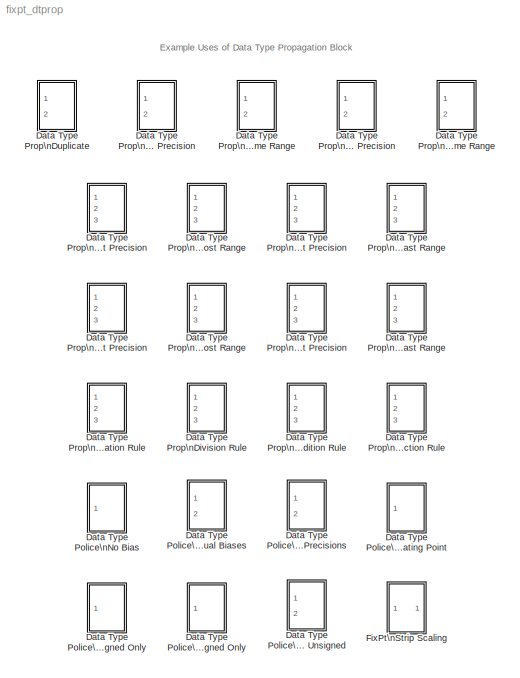
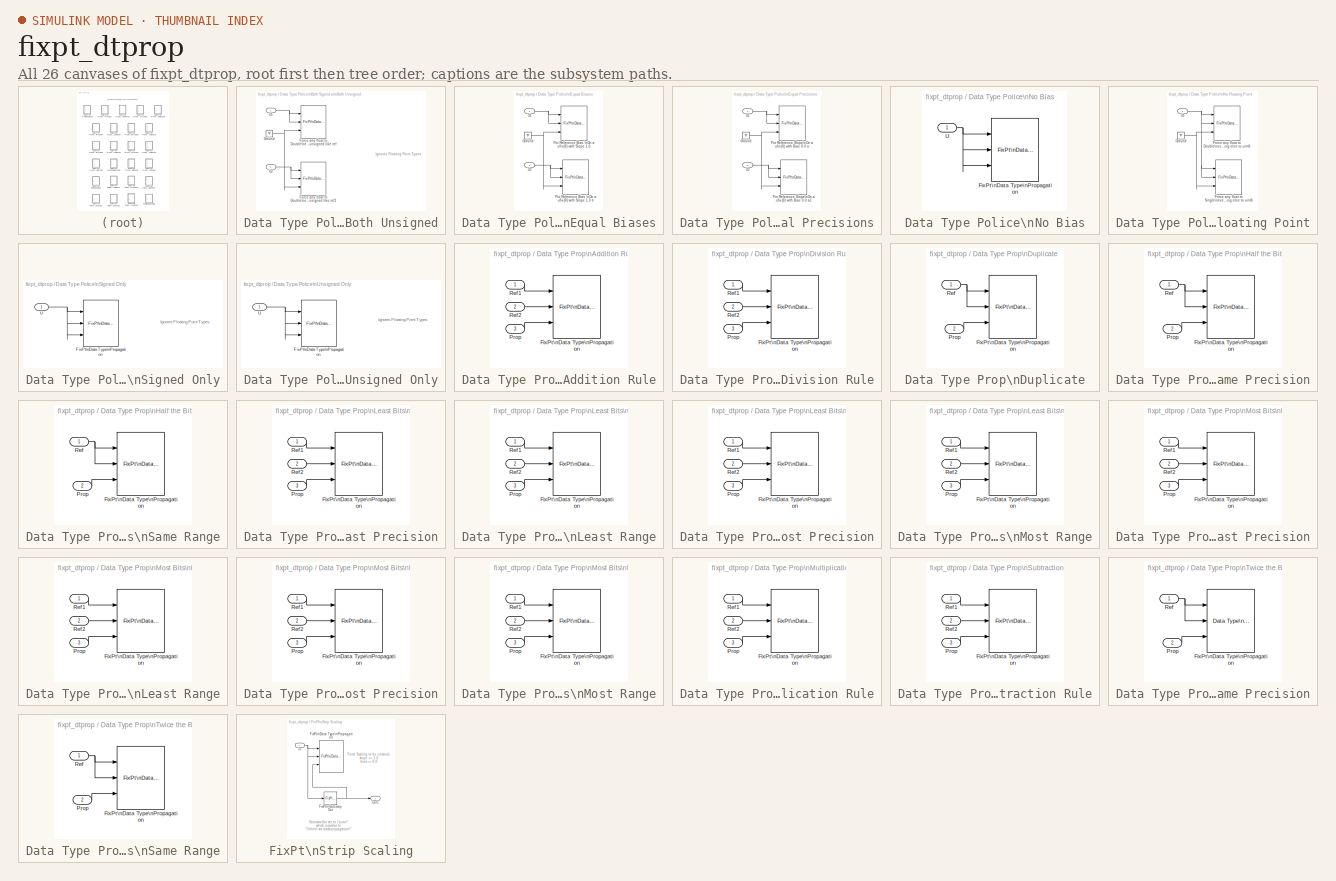
[diagram: thumbnail index - all 26 canvases of the model, root first then tree order]
MODEL fixpt_dtprop
KIND library
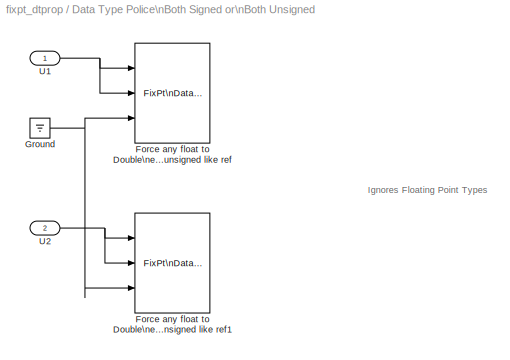
BLOCK [SubSystem] Data Type Police\nBoth Signed or\nBoth Unsigned
  Ports = [2]
  TreatAsAtomicUnit = off
BLOCK [Reference] Data Type Police\nBoth Signed or\nBoth Unsigned/Force any float to Double\neverything else to 8 bits\nwith nominal scaling\nbut signed or unsigned like ref  REF=fixpt3/FixPt\nData Type\nPropagation
  BiasAdd = 0
  BiasBase = Bias1
  BiasMult = 1
  IfRefDouble = double
  IfRefSingle = double
  IsSigned = IsSigned1
  NumBitsAdd = 8
  NumBitsAllowFinal = 1:128
  NumBitsBase = NumBits1
  NumBitsMult = 0
  Ports = [3]
  PropDataType = ufix(8)
  PropDataTypeMode = Inherit via propagation rule
  PropScaling = 1
  PropScalingMode = Specify via dialog
  SlopeAdd = 1
  SlopeBase = Slope1
  SlopeMult = 0
  SourceBlock = fixpt3/FixPt\nData Type\nPropagation
  SourceType = Fixed-Point Data Type Propagation
BLOCK [Reference] Data Type Police\nBoth Signed or\nBoth Unsigned/Force any float to Double\neverything else to 8 bits\nwith nominal scaling\nbut signed or unsigned like ref1  REF=fixpt3/FixPt\nData Type\nPropagation
  BiasAdd = 0
  BiasBase = Bias1
  BiasMult = 1
  IfRefDouble = double
  IfRefSingle = double
  IsSigned = IsSigned1
  NumBitsAdd = 8
  NumBitsAllowFinal = 1:128
  NumBitsBase = NumBits1
  NumBitsMult = 0
  Ports = [3]
  PropDataType = ufix(8)
  PropDataTypeMode = Inherit via propagation rule
  PropScaling = 1
  PropScalingMode = Specify via dialog
  SlopeAdd = 1
  SlopeBase = Slope1
  SlopeMult = 0
  SourceBlock = fixpt3/FixPt\nData Type\nPropagation
  SourceType = Fixed-Point Data Type Propagation
BLOCK [Ground] Data Type Police\nBoth Signed or\nBoth Unsigned/Ground
BLOCK [Inport] Data Type Police\nBoth Signed or\nBoth Unsigned/U1
BLOCK [Inport] Data Type Police\nBoth Signed or\nBoth Unsigned/U2
  Port = 2
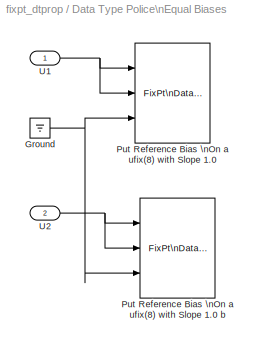
BLOCK [SubSystem] Data Type Police\nEqual Biases
  Ports = [2]
  TreatAsAtomicUnit = off
BLOCK [Ground] Data Type Police\nEqual Biases/Ground
BLOCK [Reference] Data Type Police\nEqual Biases/Put Reference Bias \nOn a ufix(8) with Slope 1.0  REF=fixpt3/FixPt\nData Type\nPropagation
  BiasAdd = 0
  BiasBase = Bias1
  BiasMult = 1
  IfRefDouble = double
  IfRefSingle = double
  IsSigned = IsSigned1
  NumBitsAdd = 0
  NumBitsAllowFinal = 1:128
  NumBitsBase = NumBits1
  NumBitsMult = 1
  Ports = [3]
  PropDataType = ufix(8)
  PropDataTypeMode = Specify via dialog
  PropScaling = 2^-10
  PropScalingMode = Inherit via propagation rule
  SlopeAdd = 1
  SlopeBase = Slope1
  SlopeMult = 0
  SourceBlock = fixpt3/FixPt\nData Type\nPropagation
  SourceType = Fixed-Point Data Type Propagation
BLOCK [Reference] Data Type Police\nEqual Biases/Put Reference Bias \nOn a ufix(8) with Slope 1.0  b  REF=fixpt3/FixPt\nData Type\nPropagation
  BiasAdd = 0
  BiasBase = Bias1
  BiasMult = 1
  IfRefDouble = double
  IfRefSingle = double
  IsSigned = IsSigned1
  NumBitsAdd = 0
  NumBitsAllowFinal = 1:128
  NumBitsBase = NumBits1
  NumBitsMult = 1
  Ports = [3]
  PropDataType = ufix(8)
  PropDataTypeMode = Specify via dialog
  PropScaling = 2^-10
  PropScalingMode = Inherit via propagation rule
  SlopeAdd = 1
  SlopeBase = Slope1
  SlopeMult = 0
  SourceBlock = fixpt3/FixPt\nData Type\nPropagation
  SourceType = Fixed-Point Data Type Propagation
BLOCK [Inport] Data Type Police\nEqual Biases/U1
BLOCK [Inport] Data Type Police\nEqual Biases/U2
  Port = 2
BLOCK [SubSystem] Data Type Police\nEqual Precisions
  Ports = [2]
  TreatAsAtomicUnit = off
BLOCK [Ground] Data Type Police\nEqual Precisions/Ground
BLOCK [Reference] Data Type Police\nEqual Precisions/Put Reference Slope\nOn a ufix(8) with Bias 0.0 a  REF=fixpt3/FixPt\nData Type\nPropagation
  BiasAdd = 0
  BiasBase = Bias1
  BiasMult = 0
  IfRefDouble = double
  IfRefSingle = double
  IsSigned = IsSigned1
  NumBitsAdd = 0
  NumBitsAllowFinal = 1:128
  NumBitsBase = NumBits1
  NumBitsMult = 1
  Ports = [3]
  PropDataType = ufix(8)
  PropDataTypeMode = Specify via dialog
  PropScaling = 2^-10
  PropScalingMode = Inherit via propagation rule
  SlopeAdd = 0
  SlopeBase = Slope1
  SlopeMult = 1
  SourceBlock = fixpt3/FixPt\nData Type\nPropagation
  SourceType = Fixed-Point Data Type Propagation
BLOCK [Reference] Data Type Police\nEqual Precisions/Put Reference Slope\nOn a ufix(8) with Bias 0.0 a1  REF=fixpt3/FixPt\nData Type\nPropagation
  BiasAdd = 0
  BiasBase = Bias1
  BiasMult = 0
  IfRefDouble = double
  IfRefSingle = double
  IsSigned = IsSigned1
  NumBitsAdd = 0
  NumBitsAllowFinal = 1:128
  NumBitsBase = NumBits1
  NumBitsMult = 1
  Ports = [3]
  PropDataType = ufix(8)
  PropDataTypeMode = Specify via dialog
  PropScaling = 2^-10
  PropScalingMode = Inherit via propagation rule
  SlopeAdd = 0
  SlopeBase = Slope1
  SlopeMult = 1
  SourceBlock = fixpt3/FixPt\nData Type\nPropagation
  SourceType = Fixed-Point Data Type Propagation
BLOCK [Inport] Data Type Police\nEqual Precisions/U1
BLOCK [Inport] Data Type Police\nEqual Precisions/U2
  Port = 2
BLOCK [SubSystem] Data Type Police\nNo Bias
  Ports = [1]
  TreatAsAtomicUnit = off
BLOCK [Reference] Data Type Police\nNo Bias/FixPt\nData Type\nPropagation  REF=fixpt3/FixPt\nData Type\nPropagation
  BiasAdd = 0
  BiasBase = Bias1
  BiasMult = 0
  IfRefDouble = double
  IfRefSingle = single
  IsSigned = IsSigned1
  NumBitsAdd = 0
  NumBitsAllowFinal = 1:128
  NumBitsBase = NumBits1
  NumBitsMult = 1
  Ports = [3]
  PropDataType = sfix(16)
  PropDataTypeMode = Inherit via propagation rule
  PropScaling = 2^-10
  PropScalingMode = Inherit via propagation rule
  SlopeAdd = 0
  SlopeBase = Slope1
  SlopeMult = 1
  SourceBlock = fixpt3/FixPt\nData Type\nPropagation
  SourceType = Fixed-Point Data Type Propagation
BLOCK [Inport] Data Type Police\nNo Bias/U
BLOCK [SubSystem] Data Type Police\nNo Floating Point
  Ports = [1]
  TreatAsAtomicUnit = off
BLOCK [Reference] Data Type Police\nNo Floating Point/Force any float to Double\neverything else to uint8  REF=fixpt3/FixPt\nData Type\nPropagation
  BiasAdd = 0
  BiasBase = Bias1
  BiasMult = 1
  IfRefDouble = double
  IfRefSingle = double
  IsSigned = FALSE
  NumBitsAdd = 8
  NumBitsAllowFinal = 1:128
  NumBitsBase = NumBits1
  NumBitsMult = 0
  Ports = [3]
  PropDataType = ufix(8)
  PropDataTypeMode = Inherit via propagation rule
  PropScaling = 1
  PropScalingMode = Specify via dialog
  SlopeAdd = 1
  SlopeBase = Slope1
  SlopeMult = 0
  SourceBlock = fixpt3/FixPt\nData Type\nPropagation
  SourceType = Fixed-Point Data Type Propagation
BLOCK [Reference] Data Type Police\nNo Floating Point/Force any float to Single\neverything else to uint8  REF=fixpt3/FixPt\nData Type\nPropagation
  BiasAdd = 0
  BiasBase = Bias1
  BiasMult = 1
  IfRefDouble = single
  IfRefSingle = single
  IsSigned = FALSE
  NumBitsAdd = 8
  NumBitsAllowFinal = 1:128
  NumBitsBase = NumBits1
  NumBitsMult = 0
  Ports = [3]
  PropDataType = ufix(8)
  PropDataTypeMode = Inherit via propagation rule
  PropScaling = 1
  PropScalingMode = Specify via dialog
  SlopeAdd = 1
  SlopeBase = Slope1
  SlopeMult = 0
  SourceBlock = fixpt3/FixPt\nData Type\nPropagation
  SourceType = Fixed-Point Data Type Propagation
BLOCK [Ground] Data Type Police\nNo Floating Point/Ground
BLOCK [Inport] Data Type Police\nNo Floating Point/U1
BLOCK [SubSystem] Data Type Police\nSigned Only
  Ports = [1]
  TreatAsAtomicUnit = off
BLOCK [Reference] Data Type Police\nSigned Only/FixPt\nData Type\nPropagation  REF=fixpt3/FixPt\nData Type\nPropagation
  BiasAdd = 0
  BiasBase = Bias1
  BiasMult = 1
  IfRefDouble = double
  IfRefSingle = single
  IsSigned = TRUE
  NumBitsAdd = 0
  NumBitsAllowFinal = 1:128
  NumBitsBase = NumBits1
  NumBitsMult = 1
  Ports = [3]
  PropDataType = ufix(8)
  PropDataTypeMode = Inherit via propagation rule
  PropScaling = 1
  PropScalingMode = Inherit via propagation rule
  SlopeAdd = 0
  SlopeBase = Slope1
  SlopeMult = 1
  SourceBlock = fixpt3/FixPt\nData Type\nPropagation
  SourceType = Fixed-Point Data Type Propagation
BLOCK [Inport] Data Type Police\nSigned Only/U
BLOCK [SubSystem] Data Type Police\nUnsigned Only
  Ports = [1]
  TreatAsAtomicUnit = off
BLOCK [Reference] Data Type Police\nUnsigned Only/FixPt\nData Type\nPropagation  REF=fixpt3/FixPt\nData Type\nPropagation
  BiasAdd = 0
  BiasBase = Bias1
  BiasMult = 1
  IfRefDouble = double
  IfRefSingle = single
  IsSigned = FALSE
  NumBitsAdd = 0
  NumBitsAllowFinal = 1:128
  NumBitsBase = NumBits1
  NumBitsMult = 1
  Ports = [3]
  PropDataType = ufix(8)
  PropDataTypeMode = Inherit via propagation rule
  PropScaling = 1
  PropScalingMode = Inherit via propagation rule
  SlopeAdd = 0
  SlopeBase = Slope1
  SlopeMult = 1
  SourceBlock = fixpt3/FixPt\nData Type\nPropagation
  SourceType = Fixed-Point Data Type Propagation
BLOCK [Inport] Data Type Police\nUnsigned Only/U
BLOCK [SubSystem] Data Type Prop\nAddition Rule
  Ports = [3]
  TreatAsAtomicUnit = off
BLOCK [Reference] Data Type Prop\nAddition Rule/FixPt\nData Type\nPropagation  REF=fixpt3/FixPt\nData Type\nPropagation
  BiasAdd = 0
  BiasBase = Bias1+Bias2
  BiasMult = 1
  IfRefDouble = double
  IfRefSingle = single
  IsSigned = IsSigned1 or IsSigned2
  NumBitsAdd = 0
  NumBitsAllowFinal = 1:128
  NumBitsBase = max([NumBits1 NumBits2])
  NumBitsMult = 1
  Ports = [3]
  PropDataType = sfix(16)
  PropDataTypeMode = Inherit via propagation rule
  PropScaling = 2^-10
  PropScalingMode = Inherit via propagation rule
  SlopeAdd = 0
  SlopeBase = max([PosRange1 PosRange2])
  SlopeMult = 1
  SourceBlock = fixpt3/FixPt\nData Type\nPropagation
  SourceType = Fixed-Point Data Type Propagation
BLOCK [Inport] Data Type Prop\nAddition Rule/Prop
  Port = 3
BLOCK [Inport] Data Type Prop\nAddition Rule/Ref1
BLOCK [Inport] Data Type Prop\nAddition Rule/Ref2
  Port = 2
BLOCK [SubSystem] Data Type Prop\nDivision Rule
  Ports = [3]
  TreatAsAtomicUnit = off
BLOCK [Reference] Data Type Prop\nDivision Rule/FixPt\nData Type\nPropagation  REF=fixpt3/FixPt\nData Type\nPropagation
  BiasAdd = 0
  BiasBase = Bias1/Bias2
  BiasMult = 1
  IfRefDouble = double
  IfRefSingle = single
  IsSigned = IsSigned1 or IsSigned2
  NumBitsAdd = 0
  NumBitsAllowFinal = 1:128
  NumBitsBase = max([NumBits1 NumBits2])
  NumBitsMult = 1
  Ports = [3]
  PropDataType = sfix(16)
  PropDataTypeMode = Inherit via propagation rule
  PropScaling = 2^-10
  PropScalingMode = Inherit via propagation rule
  SlopeAdd = 0
  SlopeBase = Slope1/Slope2
  SlopeMult = 1
  SourceBlock = fixpt3/FixPt\nData Type\nPropagation
  SourceType = Fixed-Point Data Type Propagation
BLOCK [Inport] Data Type Prop\nDivision Rule/Prop
  Port = 3
BLOCK [Inport] Data Type Prop\nDivision Rule/Ref1
BLOCK [Inport] Data Type Prop\nDivision Rule/Ref2
  Port = 2
BLOCK [SubSystem] Data Type Prop\nDuplicate
  Ports = [2]
  TreatAsAtomicUnit = off
BLOCK [Reference] Data Type Prop\nDuplicate/FixPt\nData Type\nPropagation  REF=fixpt3/FixPt\nData Type\nPropagation
  BiasAdd = 0
  BiasBase = Bias1
  BiasMult = 1
  IfRefDouble = double
  IfRefSingle = single
  IsSigned = IsSigned1
  NumBitsAdd = 0
  NumBitsAllowFinal = 1:128
  NumBitsBase = NumBits1
  NumBitsMult = 1
  Ports = [3]
  PropDataType = sfix(16)
  PropDataTypeMode = Inherit via propagation rule
  PropScaling = 2^-10
  PropScalingMode = Inherit via propagation rule
  SlopeAdd = 0
  SlopeBase = Slope1
  SlopeMult = 1
  SourceBlock = fixpt3/FixPt\nData Type\nPropagation
  SourceType = Fixed-Point Data Type Propagation
BLOCK [Inport] Data Type Prop\nDuplicate/Prop
  Port = 2
BLOCK [Inport] Data Type Prop\nDuplicate/Ref
BLOCK [SubSystem] Data Type Prop\nHalf the Bits\nSame Precision
  Ports = [2]
  TreatAsAtomicUnit = off
BLOCK [Reference] Data Type Prop\nHalf the Bits\nSame Precision/FixPt\nData Type\nPropagation  REF=fixpt3/FixPt\nData Type\nPropagation
  BiasAdd = 0
  BiasBase = Bias1
  BiasMult = 1
  IfRefDouble = single
  IfRefSingle = single
  IsSigned = IsSigned1
  NumBitsAdd = 0
  NumBitsAllowFinal = 1:128
  NumBitsBase = NumBits1
  NumBitsMult = 0.5
  Ports = [3]
  PropDataType = sfix(16)
  PropDataTypeMode = Inherit via propagation rule
  PropScaling = 2^-10
  PropScalingMode = Inherit via propagation rule
  SlopeAdd = 0
  SlopeBase = Slope1
  SlopeMult = 1
  SourceBlock = fixpt3/FixPt\nData Type\nPropagation
  SourceType = Fixed-Point Data Type Propagation
BLOCK [Inport] Data Type Prop\nHalf the Bits\nSame Precision/Prop
  Port = 2
BLOCK [Inport] Data Type Prop\nHalf the Bits\nSame Precision/Ref
BLOCK [SubSystem] Data Type Prop\nHalf the Bits\nSame Range
  Ports = [2]
  TreatAsAtomicUnit = off
BLOCK [Reference] Data Type Prop\nHalf the Bits\nSame Range/FixPt\nData Type\nPropagation  REF=fixpt3/FixPt\nData Type\nPropagation
  BiasAdd = 0
  BiasBase = Bias1
  BiasMult = 1
  IfRefDouble = single
  IfRefSingle = single
  IsSigned = IsSigned1
  NumBitsAdd = 0
  NumBitsAllowFinal = 1:128
  NumBitsBase = NumBits1
  NumBitsMult = 0.5
  Ports = [3]
  PropDataType = sfix(16)
  PropDataTypeMode = Inherit via propagation rule
  PropScaling = 2^-10
  PropScalingMode = Inherit via propagation rule
  SlopeAdd = 0
  SlopeBase = PosRange1
  SlopeMult = 1
  SourceBlock = fixpt3/FixPt\nData Type\nPropagation
  SourceType = Fixed-Point Data Type Propagation
BLOCK [Inport] Data Type Prop\nHalf the Bits\nSame Range/Prop
  Port = 2
BLOCK [Inport] Data Type Prop\nHalf the Bits\nSame Range/Ref
BLOCK [SubSystem] Data Type Prop\nLeast Bits\nLeast Precision
  Ports = [3]
  TreatAsAtomicUnit = off
BLOCK [Reference] Data Type Prop\nLeast Bits\nLeast Precision/FixPt\nData Type\nPropagation  REF=fixpt3/FixPt\nData Type\nPropagation
  BiasAdd = 0
  BiasBase = max([Bias1 Bias2])
  BiasMult = 1
  IfRefDouble = double
  IfRefSingle = single
  IsSigned = IsSigned1 or IsSigned2
  NumBitsAdd = 0
  NumBitsAllowFinal = 1:128
  NumBitsBase = min([NumBits1 NumBits2])
  NumBitsMult = 1
  Ports = [3]
  PropDataType = sfix(16)
  PropDataTypeMode = Inherit via propagation rule
  PropScaling = 2^-10
  PropScalingMode = Inherit via propagation rule
  SlopeAdd = 0
  SlopeBase = max([Slope1 Slope2])
  SlopeMult = 1
  SourceBlock = fixpt3/FixPt\nData Type\nPropagation
  SourceType = Fixed-Point Data Type Propagation
BLOCK [Inport] Data Type Prop\nLeast Bits\nLeast Precision/Prop
  Port = 3
BLOCK [Inport] Data Type Prop\nLeast Bits\nLeast Precision/Ref1
BLOCK [Inport] Data Type Prop\nLeast Bits\nLeast Precision/Ref2
  Port = 2
BLOCK [SubSystem] Data Type Prop\nLeast Bits\nLeast Range
  Ports = [3]
  TreatAsAtomicUnit = off
BLOCK [Reference] Data Type Prop\nLeast Bits\nLeast Range/FixPt\nData Type\nPropagation  REF=fixpt3/FixPt\nData Type\nPropagation
  BiasAdd = 0
  BiasBase = min([Bias1 Bias2])
  BiasMult = 1
  IfRefDouble = double
  IfRefSingle = single
  IsSigned = IsSigned1 or IsSigned2
  NumBitsAdd = 0
  NumBitsAllowFinal = 1:128
  NumBitsBase = min([NumBits1 NumBits2])
  NumBitsMult = 1
  Ports = [3]
  PropDataType = sfix(16)
  PropDataTypeMode = Inherit via propagation rule
  PropScaling = 2^-10
  PropScalingMode = Inherit via propagation rule
  SlopeAdd = 0
  SlopeBase = min([PosRange1 PosRange2])
  SlopeMult = 1
  SourceBlock = fixpt3/FixPt\nData Type\nPropagation
  SourceType = Fixed-Point Data Type Propagation
BLOCK [Inport] Data Type Prop\nLeast Bits\nLeast Range/Prop
  Port = 3
BLOCK [Inport] Data Type Prop\nLeast Bits\nLeast Range/Ref1
BLOCK [Inport] Data Type Prop\nLeast Bits\nLeast Range/Ref2
  Port = 2
BLOCK [SubSystem] Data Type Prop\nLeast Bits\nMost Precision
  Ports = [3]
  TreatAsAtomicUnit = off
BLOCK [Reference] Data Type Prop\nLeast Bits\nMost Precision/FixPt\nData Type\nPropagation  REF=fixpt3/FixPt\nData Type\nPropagation
  BiasAdd = 0
  BiasBase = min([Bias1 Bias2])
  BiasMult = 1
  IfRefDouble = double
  IfRefSingle = single
  IsSigned = IsSigned1 or IsSigned2
  NumBitsAdd = 0
  NumBitsAllowFinal = 1:128
  NumBitsBase = min([NumBits1 NumBits2])
  NumBitsMult = 1
  Ports = [3]
  PropDataType = sfix(16)
  PropDataTypeMode = Inherit via propagation rule
  PropScaling = 2^-10
  PropScalingMode = Inherit via propagation rule
  SlopeAdd = 0
  SlopeBase = min([Slope1 Slope2])
  SlopeMult = 1
  SourceBlock = fixpt3/FixPt\nData Type\nPropagation
  SourceType = Fixed-Point Data Type Propagation
BLOCK [Inport] Data Type Prop\nLeast Bits\nMost Precision/Prop
  Port = 3
BLOCK [Inport] Data Type Prop\nLeast Bits\nMost Precision/Ref1
BLOCK [Inport] Data Type Prop\nLeast Bits\nMost Precision/Ref2
  Port = 2
BLOCK [SubSystem] Data Type Prop\nLeast Bits\nMost Range
  Ports = [3]
  TreatAsAtomicUnit = off
BLOCK [Reference] Data Type Prop\nLeast Bits\nMost Range/FixPt\nData Type\nPropagation  REF=fixpt3/FixPt\nData Type\nPropagation
  BiasAdd = 0
  BiasBase = max([Bias1 Bias2])
  BiasMult = 1
  IfRefDouble = double
  IfRefSingle = single
  IsSigned = IsSigned1 or IsSigned2
  NumBitsAdd = 0
  NumBitsAllowFinal = 1:128
  NumBitsBase = min([NumBits1 NumBits2])
  NumBitsMult = 1
  Ports = [3]
  PropDataType = sfix(16)
  PropDataTypeMode = Inherit via propagation rule
  PropScaling = 2^-10
  PropScalingMode = Inherit via propagation rule
  SlopeAdd = 0
  SlopeBase = max([PosRange1 PosRange2])
  SlopeMult = 1
  SourceBlock = fixpt3/FixPt\nData Type\nPropagation
  SourceType = Fixed-Point Data Type Propagation
BLOCK [Inport] Data Type Prop\nLeast Bits\nMost Range/Prop
  Port = 3
BLOCK [Inport] Data Type Prop\nLeast Bits\nMost Range/Ref1
BLOCK [Inport] Data Type Prop\nLeast Bits\nMost Range/Ref2
  Port = 2
BLOCK [SubSystem] Data Type Prop\nMost Bits\nLeast Precision
  Ports = [3]
  TreatAsAtomicUnit = off
BLOCK [Reference] Data Type Prop\nMost Bits\nLeast Precision/FixPt\nData Type\nPropagation  REF=fixpt3/FixPt\nData Type\nPropagation
  BiasAdd = 0
  BiasBase = max([Bias1 Bias2])
  BiasMult = 1
  IfRefDouble = double
  IfRefSingle = single
  IsSigned = IsSigned1 or IsSigned2
  NumBitsAdd = 0
  NumBitsAllowFinal = 1:128
  NumBitsBase = max([NumBits1 NumBits2])
  NumBitsMult = 1
  Ports = [3]
  PropDataType = sfix(16)
  PropDataTypeMode = Inherit via propagation rule
  PropScaling = 2^-10
  PropScalingMode = Inherit via propagation rule
  SlopeAdd = 0
  SlopeBase = max([Slope1 Slope2])
  SlopeMult = 1
  SourceBlock = fixpt3/FixPt\nData Type\nPropagation
  SourceType = Fixed-Point Data Type Propagation
BLOCK [Inport] Data Type Prop\nMost Bits\nLeast Precision/Prop
  Port = 3
BLOCK [Inport] Data Type Prop\nMost Bits\nLeast Precision/Ref1
BLOCK [Inport] Data Type Prop\nMost Bits\nLeast Precision/Ref2
  Port = 2
BLOCK [SubSystem] Data Type Prop\nMost Bits\nLeast Range
  Ports = [3]
  TreatAsAtomicUnit = off
BLOCK [Reference] Data Type Prop\nMost Bits\nLeast Range/FixPt\nData Type\nPropagation  REF=fixpt3/FixPt\nData Type\nPropagation
  BiasAdd = 0
  BiasBase = min([Bias1 Bias2])
  BiasMult = 1
  IfRefDouble = double
  IfRefSingle = single
  IsSigned = IsSigned1 or IsSigned2
  NumBitsAdd = 0
  NumBitsAllowFinal = 1:128
  NumBitsBase = max([NumBits1 NumBits2])
  NumBitsMult = 1
  Ports = [3]
  PropDataType = sfix(16)
  PropDataTypeMode = Inherit via propagation rule
  PropScaling = 2^-10
  PropScalingMode = Inherit via propagation rule
  SlopeAdd = 0
  SlopeBase = min([PosRange1 PosRange2])
  SlopeMult = 1
  SourceBlock = fixpt3/FixPt\nData Type\nPropagation
  SourceType = Fixed-Point Data Type Propagation
BLOCK [Inport] Data Type Prop\nMost Bits\nLeast Range/Prop
  Port = 3
BLOCK [Inport] Data Type Prop\nMost Bits\nLeast Range/Ref1
BLOCK [Inport] Data Type Prop\nMost Bits\nLeast Range/Ref2
  Port = 2
BLOCK [SubSystem] Data Type Prop\nMost Bits\nMost Precision
  Ports = [3]
  TreatAsAtomicUnit = off
BLOCK [Reference] Data Type Prop\nMost Bits\nMost Precision/FixPt\nData Type\nPropagation  REF=fixpt3/FixPt\nData Type\nPropagation
  BiasAdd = 0
  BiasBase = min([Bias1 Bias2])
  BiasMult = 1
  IfRefDouble = double
  IfRefSingle = single
  IsSigned = IsSigned1 or IsSigned2
  NumBitsAdd = 0
  NumBitsAllowFinal = 1:128
  NumBitsBase = max([NumBits1 NumBits2])
  NumBitsMult = 1
  Ports = [3]
  PropDataType = sfix(16)
  PropDataTypeMode = Inherit via propagation rule
  PropScaling = 2^-10
  PropScalingMode = Inherit via propagation rule
  SlopeAdd = 0
  SlopeBase = min([Slope1 Slope2])
  SlopeMult = 1
  SourceBlock = fixpt3/FixPt\nData Type\nPropagation
  SourceType = Fixed-Point Data Type Propagation
BLOCK [Inport] Data Type Prop\nMost Bits\nMost Precision/Prop
  Port = 3
BLOCK [Inport] Data Type Prop\nMost Bits\nMost Precision/Ref1
BLOCK [Inport] Data Type Prop\nMost Bits\nMost Precision/Ref2
  Port = 2
BLOCK [SubSystem] Data Type Prop\nMost Bits\nMost Range
  Ports = [3]
  TreatAsAtomicUnit = off
BLOCK [Reference] Data Type Prop\nMost Bits\nMost Range/FixPt\nData Type\nPropagation  REF=fixpt3/FixPt\nData Type\nPropagation
  BiasAdd = 0
  BiasBase = max([Bias1 Bias2])
  BiasMult = 1
  IfRefDouble = double
  IfRefSingle = single
  IsSigned = IsSigned1 or IsSigned2
  NumBitsAdd = 0
  NumBitsAllowFinal = 1:128
  NumBitsBase = max([NumBits1 NumBits2])
  NumBitsMult = 1
  Ports = [3]
  PropDataType = sfix(16)
  PropDataTypeMode = Inherit via propagation rule
  PropScaling = 2^-10
  PropScalingMode = Inherit via propagation rule
  SlopeAdd = 0
  SlopeBase = max([PosRange1 PosRange2])
  SlopeMult = 1
  SourceBlock = fixpt3/FixPt\nData Type\nPropagation
  SourceType = Fixed-Point Data Type Propagation
BLOCK [Inport] Data Type Prop\nMost Bits\nMost Range/Prop
  Port = 3
BLOCK [Inport] Data Type Prop\nMost Bits\nMost Range/Ref1
BLOCK [Inport] Data Type Prop\nMost Bits\nMost Range/Ref2
  Port = 2
BLOCK [SubSystem] Data Type Prop\nMultiplication Rule
  Ports = [3]
  TreatAsAtomicUnit = off
BLOCK [Reference] Data Type Prop\nMultiplication Rule/FixPt\nData Type\nPropagation  REF=fixpt3/FixPt\nData Type\nPropagation
  BiasAdd = 0
  BiasBase = Bias1*Bias2
  BiasMult = 1
  IfRefDouble = double
  IfRefSingle = single
  IsSigned = IsSigned1 or IsSigned2
  NumBitsAdd = 0
  NumBitsAllowFinal = 1:128
  NumBitsBase = NumBits1+NumBits2
  NumBitsMult = 1
  Ports = [3]
  PropDataType = sfix(16)
  PropDataTypeMode = Inherit via propagation rule
  PropScaling = 2^-10
  PropScalingMode = Inherit via propagation rule
  SlopeAdd = 0
  SlopeBase = Slope1*Slope2
  SlopeMult = 1
  SourceBlock = fixpt3/FixPt\nData Type\nPropagation
  SourceType = Fixed-Point Data Type Propagation
BLOCK [Inport] Data Type Prop\nMultiplication Rule/Prop
  Port = 3
BLOCK [Inport] Data Type Prop\nMultiplication Rule/Ref1
BLOCK [Inport] Data Type Prop\nMultiplication Rule/Ref2
  Port = 2
BLOCK [SubSystem] Data Type Prop\nSubtraction Rule
  Ports = [3]
  TreatAsAtomicUnit = off
BLOCK [Reference] Data Type Prop\nSubtraction Rule/FixPt\nData Type\nPropagation  REF=fixpt3/FixPt\nData Type\nPropagation
  BiasAdd = 0
  BiasBase = Bias1-Bias2
  BiasMult = 1
  IfRefDouble = double
  IfRefSingle = single
  IsSigned = IsSigned1 or IsSigned2
  NumBitsAdd = 0
  NumBitsAllowFinal = 1:128
  NumBitsBase = max([NumBits1 NumBits2])
  NumBitsMult = 1
  Ports = [3]
  PropDataType = sfix(16)
  PropDataTypeMode = Inherit via propagation rule
  PropScaling = 2^-10
  PropScalingMode = Inherit via propagation rule
  SlopeAdd = 0
  SlopeBase = max([PosRange1 PosRange2])
  SlopeMult = 1
  SourceBlock = fixpt3/FixPt\nData Type\nPropagation
  SourceType = Fixed-Point Data Type Propagation
BLOCK [Inport] Data Type Prop\nSubtraction Rule/Prop
  Port = 3
BLOCK [Inport] Data Type Prop\nSubtraction Rule/Ref1
BLOCK [Inport] Data Type Prop\nSubtraction Rule/Ref2
  Port = 2
BLOCK [SubSystem] Data Type Prop\nTwice the Bits\nSame Precision
  Ports = [2]
  TreatAsAtomicUnit = off
BLOCK [Reference] Data Type Prop\nTwice the Bits\nSame Precision/FixPt\nData Type\nPropagation  REF=fixpt_lib_4/Data Type/Data Type\nPropagation  (lib defined in mdl_ef9dacb0d1df)
  BiasAdd = 0
  BiasBase = Bias1
  BiasMult = 1
  IfRefDouble = double
  IfRefSingle = double
  IsSigned = IsSigned1
  NumBitsAdd = 0
  NumBitsAllowFinal = 1:128
  NumBitsBase = NumBits1
  NumBitsMult = 2
  Ports = [3]
  PropDataType = sfix(16)
  PropDataTypeMode = Inherit via propagation rule
  PropScaling = 2^-10
  PropScalingMode = Inherit via propagation rule
  SlopeAdd = 0
  SlopeBase = Slope1
  SlopeMult = 1
  SourceBlock = fixpt_lib_4/Data Type/Data Type\nPropagation
  SourceType = Fixed-Point Data Type Propagation
  ValuesUsedBestPrec = [5 -7]
BLOCK [Inport] Data Type Prop\nTwice the Bits\nSame Precision/Prop
  Port = 2
BLOCK [Inport] Data Type Prop\nTwice the Bits\nSame Precision/Ref
BLOCK [SubSystem] Data Type Prop\nTwice the Bits\nSame Range
  Ports = [2]
  TreatAsAtomicUnit = off
BLOCK [Reference] Data Type Prop\nTwice the Bits\nSame Range/FixPt\nData Type\nPropagation  REF=fixpt3/FixPt\nData Type\nPropagation
  BiasAdd = 0
  BiasBase = Bias1
  BiasMult = 1
  IfRefDouble = double
  IfRefSingle = double
  IsSigned = IsSigned1
  NumBitsAdd = 0
  NumBitsAllowFinal = 1:128
  NumBitsBase = NumBits1
  NumBitsMult = 2
  Ports = [3]
  PropDataType = sfix(16)
  PropDataTypeMode = Inherit via propagation rule
  PropScaling = 2^-10
  PropScalingMode = Inherit via propagation rule
  SlopeAdd = 0
  SlopeBase = PosRange1
  SlopeMult = 1
  SourceBlock = fixpt3/FixPt\nData Type\nPropagation
  SourceType = Fixed-Point Data Type Propagation
BLOCK [Inport] Data Type Prop\nTwice the Bits\nSame Range/Prop
  Port = 2
BLOCK [Inport] Data Type Prop\nTwice the Bits\nSame Range/Ref
BLOCK [SubSystem] FixPt\nStrip Scaling
  MaskDescription = This block strips the scaling off a fixed point signal.  It maps the input data type to the smallest builtin data type that has sufficient bits to hold the input.  The stored Integer Value of the input will be the value of the output.  The output always has nominal scaling (slope = 1.0 and bias = 0.0), so the output does not have a distinction between Real World Value and Stored Integer Value.
  MaskDisplay = fprintf('Strip')
  MaskIconFrame = on
  MaskIconOpaque = on
  MaskIconRotate = none
  MaskIconUnits = autoscale
  MaskType = Fixed-Point Strip Scaling
  Ports = [1, 1]
  TreatAsAtomicUnit = off
BLOCK [Reference] FixPt\nStrip Scaling/FixPt\nData Type\nPropagation  REF=fixpt3/FixPt\nData Type\nPropagation
  BiasAdd = 0
  BiasBase = Bias1
  BiasMult = 1
  IfRefDouble = double
  IfRefSingle = single
  IsSigned = IsSigned1
  NumBitsAdd = 0
  NumBitsAllowFinal = [8,16,32]
  NumBitsBase = NumBits1
  NumBitsMult = 1
  Ports = [3]
  PropDataType = sfix(16)
  PropDataTypeMode = Inherit via propagation rule
  PropScaling = 1
  PropScalingMode = Specify via dialog
  SlopeAdd = 1
  SlopeBase = Slope1
  SlopeMult = 0
  SourceBlock = fixpt3/FixPt\nData Type\nPropagation
  SourceType = Fixed-Point Data Type Propagation
BLOCK [Reference] FixPt\nStrip Scaling/FixPt\nGateway Out  REF=fixpt3/FixPt\nGateway Out
  OutBuiltInType = auto
  OutRealWorld = Stored Integer
  Ports = [1, 1]
  SourceBlock = fixpt3/FixPt\nGateway Out
  SourceType = Fixed-Point Gateway Out
BLOCK [Inport] FixPt\nStrip Scaling/In
BLOCK [Outport] FixPt\nStrip Scaling/Out1
ANNOTATION (root): Example Uses of Data Type Propagation Block
ANNOTATION Data Type Police\nBoth Signed or\nBoth Unsigned: Ignores Floating Point Types
ANNOTATION Data Type Police\nSigned Only: Ignores Floating Point Types
ANNOTATION Data Type Police\nUnsigned Only: Ignores Floating Point Types
ANNOTATION FixPt\nStrip Scaling: Force Scaling to be nominal,\nslope == 1.0\nbias == 0.0
ANNOTATION FixPt\nStrip Scaling: Gateway Out set to \"auto\"\nwhich is similar to \n\"Inherit via back propagation\"
NET Data Type Police\nBoth Signed or\nBoth Unsigned/Ground:1 -> Data Type Police\nBoth Signed or\nBoth Unsigned/Force any float to Double\neverything else to 8 bits\nwith nominal scaling\nbut signed or unsigned like ref1:3, Data Type Police\nBoth Signed or\nBoth Unsigned/Force any float to Double\neverything else to 8 bits\nwith nominal scaling\nbut signed or unsigned like ref:3
NET Data Type Police\nBoth Signed or\nBoth Unsigned/U1:1 -> Data Type Police\nBoth Signed or\nBoth Unsigned/Force any float to Double\neverything else to 8 bits\nwith nominal scaling\nbut signed or unsigned like ref:1, Data Type Police\nBoth Signed or\nBoth Unsigned/Force any float to Double\neverything else to 8 bits\nwith nominal scaling\nbut signed or unsigned like ref:2
NET Data Type Police\nBoth Signed or\nBoth Unsigned/U2:1 -> Data Type Police\nBoth Signed or\nBoth Unsigned/Force any float to Double\neverything else to 8 bits\nwith nominal scaling\nbut signed or unsigned like ref1:1, Data Type Police\nBoth Signed or\nBoth Unsigned/Force any float to Double\neverything else to 8 bits\nwith nominal scaling\nbut signed or unsigned like ref1:2
NET Data Type Police\nEqual Biases/Ground:1 -> Data Type Police\nEqual Biases/Put Reference Bias \nOn a ufix(8) with Slope 1.0  b:3, Data Type Police\nEqual Biases/Put Reference Bias \nOn a ufix(8) with Slope 1.0:3
NET Data Type Police\nEqual Biases/U1:1 -> Data Type Police\nEqual Biases/Put Reference Bias \nOn a ufix(8) with Slope 1.0:1, Data Type Police\nEqual Biases/Put Reference Bias \nOn a ufix(8) with Slope 1.0:2
NET Data Type Police\nEqual Biases/U2:1 -> Data Type Police\nEqual Biases/Put Reference Bias \nOn a ufix(8) with Slope 1.0  b:1, Data Type Police\nEqual Biases/Put Reference Bias \nOn a ufix(8) with Slope 1.0  b:2
NET Data Type Police\nEqual Precisions/Ground:1 -> Data Type Police\nEqual Precisions/Put Reference Slope\nOn a ufix(8) with Bias 0.0 a1:3, Data Type Police\nEqual Precisions/Put Reference Slope\nOn a ufix(8) with Bias 0.0 a:3
NET Data Type Police\nEqual Precisions/U1:1 -> Data Type Police\nEqual Precisions/Put Reference Slope\nOn a ufix(8) with Bias 0.0 a:1, Data Type Police\nEqual Precisions/Put Reference Slope\nOn a ufix(8) with Bias 0.0 a:2
NET Data Type Police\nEqual Precisions/U2:1 -> Data Type Police\nEqual Precisions/Put Reference Slope\nOn a ufix(8) with Bias 0.0 a1:1, Data Type Police\nEqual Precisions/Put Reference Slope\nOn a ufix(8) with Bias 0.0 a1:2
NET Data Type Police\nNo Bias/U:1 -> Data Type Police\nNo Bias/FixPt\nData Type\nPropagation:1, Data Type Police\nNo Bias/FixPt\nData Type\nPropagation:2, Data Type Police\nNo Bias/FixPt\nData Type\nPropagation:3
NET Data Type Police\nNo Floating Point/Ground:1 -> Data Type Police\nNo Floating Point/Force any float to Double\neverything else to uint8:3, Data Type Police\nNo Floating Point/Force any float to Single\neverything else to uint8:3
NET Data Type Police\nNo Floating Point/U1:1 -> Data Type Police\nNo Floating Point/Force any float to Double\neverything else to uint8:1, Data Type Police\nNo Floating Point/Force any float to Double\neverything else to uint8:2, Data Type Police\nNo Floating Point/Force any float to Single\neverything else to uint8:1, Data Type Police\nNo Floating Point/Force any float to Single\neverything else to uint8:2
NET Data Type Police\nSigned Only/U:1 -> Data Type Police\nSigned Only/FixPt\nData Type\nPropagation:1, Data Type Police\nSigned Only/FixPt\nData Type\nPropagation:2, Data Type Police\nSigned Only/FixPt\nData Type\nPropagation:3
NET Data Type Police\nUnsigned Only/U:1 -> Data Type Police\nUnsigned Only/FixPt\nData Type\nPropagation:1, Data Type Police\nUnsigned Only/FixPt\nData Type\nPropagation:2, Data Type Police\nUnsigned Only/FixPt\nData Type\nPropagation:3
LINE Data Type Prop\nAddition Rule/Prop:1 -> Data Type Prop\nAddition Rule/FixPt\nData Type\nPropagation:3
LINE Data Type Prop\nAddition Rule/Ref1:1 -> Data Type Prop\nAddition Rule/FixPt\nData Type\nPropagation:1
LINE Data Type Prop\nAddition Rule/Ref2:1 -> Data Type Prop\nAddition Rule/FixPt\nData Type\nPropagation:2
LINE Data Type Prop\nDivision Rule/Prop:1 -> Data Type Prop\nDivision Rule/FixPt\nData Type\nPropagation:3
LINE Data Type Prop\nDivision Rule/Ref1:1 -> Data Type Prop\nDivision Rule/FixPt\nData Type\nPropagation:1
LINE Data Type Prop\nDivision Rule/Ref2:1 -> Data Type Prop\nDivision Rule/FixPt\nData Type\nPropagation:2
LINE Data Type Prop\nDuplicate/Prop:1 -> Data Type Prop\nDuplicate/FixPt\nData Type\nPropagation:3
NET Data Type Prop\nDuplicate/Ref:1 -> Data Type Prop\nDuplicate/FixPt\nData Type\nPropagation:1, Data Type Prop\nDuplicate/FixPt\nData Type\nPropagation:2
LINE Data Type Prop\nHalf the Bits\nSame Precision/Prop:1 -> Data Type Prop\nHalf the Bits\nSame Precision/FixPt\nData Type\nPropagation:3
NET Data Type Prop\nHalf the Bits\nSame Precision/Ref:1 -> Data Type Prop\nHalf the Bits\nSame Precision/FixPt\nData Type\nPropagation:1, Data Type Prop\nHalf the Bits\nSame Precision/FixPt\nData Type\nPropagation:2
LINE Data Type Prop\nHalf the Bits\nSame Range/Prop:1 -> Data Type Prop\nHalf the Bits\nSame Range/FixPt\nData Type\nPropagation:3
NET Data Type Prop\nHalf the Bits\nSame Range/Ref:1 -> Data Type Prop\nHalf the Bits\nSame Range/FixPt\nData Type\nPropagation:1, Data Type Prop\nHalf the Bits\nSame Range/FixPt\nData Type\nPropagation:2
LINE Data Type Prop\nLeast Bits\nLeast Precision/Prop:1 -> Data Type Prop\nLeast Bits\nLeast Precision/FixPt\nData Type\nPropagation:3
LINE Data Type Prop\nLeast Bits\nLeast Precision/Ref1:1 -> Data Type Prop\nLeast Bits\nLeast Precision/FixPt\nData Type\nPropagation:1
LINE Data Type Prop\nLeast Bits\nLeast Precision/Ref2:1 -> Data Type Prop\nLeast Bits\nLeast Precision/FixPt\nData Type\nPropagation:2
LINE Data Type Prop\nLeast Bits\nLeast Range/Prop:1 -> Data Type Prop\nLeast Bits\nLeast Range/FixPt\nData Type\nPropagation:3
LINE Data Type Prop\nLeast Bits\nLeast Range/Ref1:1 -> Data Type Prop\nLeast Bits\nLeast Range/FixPt\nData Type\nPropagation:1
LINE Data Type Prop\nLeast Bits\nLeast Range/Ref2:1 -> Data Type Prop\nLeast Bits\nLeast Range/FixPt\nData Type\nPropagation:2
LINE Data Type Prop\nLeast Bits\nMost Precision/Prop:1 -> Data Type Prop\nLeast Bits\nMost Precision/FixPt\nData Type\nPropagation:3
LINE Data Type Prop\nLeast Bits\nMost Precision/Ref1:1 -> Data Type Prop\nLeast Bits\nMost Precision/FixPt\nData Type\nPropagation:1
LINE Data Type Prop\nLeast Bits\nMost Precision/Ref2:1 -> Data Type Prop\nLeast Bits\nMost Precision/FixPt\nData Type\nPropagation:2
LINE Data Type Prop\nLeast Bits\nMost Range/Prop:1 -> Data Type Prop\nLeast Bits\nMost Range/FixPt\nData Type\nPropagation:3
LINE Data Type Prop\nLeast Bits\nMost Range/Ref1:1 -> Data Type Prop\nLeast Bits\nMost Range/FixPt\nData Type\nPropagation:1
LINE Data Type Prop\nLeast Bits\nMost Range/Ref2:1 -> Data Type Prop\nLeast Bits\nMost Range/FixPt\nData Type\nPropagation:2
LINE Data Type Prop\nMost Bits\nLeast Precision/Prop:1 -> Data Type Prop\nMost Bits\nLeast Precision/FixPt\nData Type\nPropagation:3
LINE Data Type Prop\nMost Bits\nLeast Precision/Ref1:1 -> Data Type Prop\nMost Bits\nLeast Precision/FixPt\nData Type\nPropagation:1
LINE Data Type Prop\nMost Bits\nLeast Precision/Ref2:1 -> Data Type Prop\nMost Bits\nLeast Precision/FixPt\nData Type\nPropagation:2
LINE Data Type Prop\nMost Bits\nLeast Range/Prop:1 -> Data Type Prop\nMost Bits\nLeast Range/FixPt\nData Type\nPropagation:3
LINE Data Type Prop\nMost Bits\nLeast Range/Ref1:1 -> Data Type Prop\nMost Bits\nLeast Range/FixPt\nData Type\nPropagation:1
LINE Data Type Prop\nMost Bits\nLeast Range/Ref2:1 -> Data Type Prop\nMost Bits\nLeast Range/FixPt\nData Type\nPropagation:2
LINE Data Type Prop\nMost Bits\nMost Precision/Prop:1 -> Data Type Prop\nMost Bits\nMost Precision/FixPt\nData Type\nPropagation:3
LINE Data Type Prop\nMost Bits\nMost Precision/Ref1:1 -> Data Type Prop\nMost Bits\nMost Precision/FixPt\nData Type\nPropagation:1
LINE Data Type Prop\nMost Bits\nMost Precision/Ref2:1 -> Data Type Prop\nMost Bits\nMost Precision/FixPt\nData Type\nPropagation:2
LINE Data Type Prop\nMost Bits\nMost Range/Prop:1 -> Data Type Prop\nMost Bits\nMost Range/FixPt\nData Type\nPropagation:3
LINE Data Type Prop\nMost Bits\nMost Range/Ref1:1 -> Data Type Prop\nMost Bits\nMost Range/FixPt\nData Type\nPropagation:1
LINE Data Type Prop\nMost Bits\nMost Range/Ref2:1 -> Data Type Prop\nMost Bits\nMost Range/FixPt\nData Type\nPropagation:2
LINE Data Type Prop\nMultiplication Rule/Prop:1 -> Data Type Prop\nMultiplication Rule/FixPt\nData Type\nPropagation:3
LINE Data Type Prop\nMultiplication Rule/Ref1:1 -> Data Type Prop\nMultiplication Rule/FixPt\nData Type\nPropagation:1
LINE Data Type Prop\nMultiplication Rule/Ref2:1 -> Data Type Prop\nMultiplication Rule/FixPt\nData Type\nPropagation:2
LINE Data Type Prop\nSubtraction Rule/Prop:1 -> Data Type Prop\nSubtraction Rule/FixPt\nData Type\nPropagation:3
LINE Data Type Prop\nSubtraction Rule/Ref1:1 -> Data Type Prop\nSubtraction Rule/FixPt\nData Type\nPropagation:1
LINE Data Type Prop\nSubtraction Rule/Ref2:1 -> Data Type Prop\nSubtraction Rule/FixPt\nData Type\nPropagation:2
LINE Data Type Prop\nTwice the Bits\nSame Precision/Prop:1 -> Data Type Prop\nTwice the Bits\nSame Precision/FixPt\nData Type\nPropagation:3
NET Data Type Prop\nTwice the Bits\nSame Precision/Ref:1 -> Data Type Prop\nTwice the Bits\nSame Precision/FixPt\nData Type\nPropagation:1, Data Type Prop\nTwice the Bits\nSame Precision/FixPt\nData Type\nPropagation:2
LINE Data Type Prop\nTwice the Bits\nSame Range/Prop:1 -> Data Type Prop\nTwice the Bits\nSame Range/FixPt\nData Type\nPropagation:3
NET Data Type Prop\nTwice the Bits\nSame Range/Ref:1 -> Data Type Prop\nTwice the Bits\nSame Range/FixPt\nData Type\nPropagation:1, Data Type Prop\nTwice the Bits\nSame Range/FixPt\nData Type\nPropagation:2
NET FixPt\nStrip Scaling/FixPt\nGateway Out:1 -> FixPt\nStrip Scaling/FixPt\nData Type\nPropagation:3, FixPt\nStrip Scaling/Out1:1
NET FixPt\nStrip Scaling/In:1 -> FixPt\nStrip Scaling/FixPt\nData Type\nPropagation:1, FixPt\nStrip Scaling/FixPt\nData Type\nPropagation:2, FixPt\nStrip Scaling/FixPt\nGateway Out:1
note: NET lines group one-source signal fan-out (src -> all destinations, sorted); 1:1 wires keep LINE
